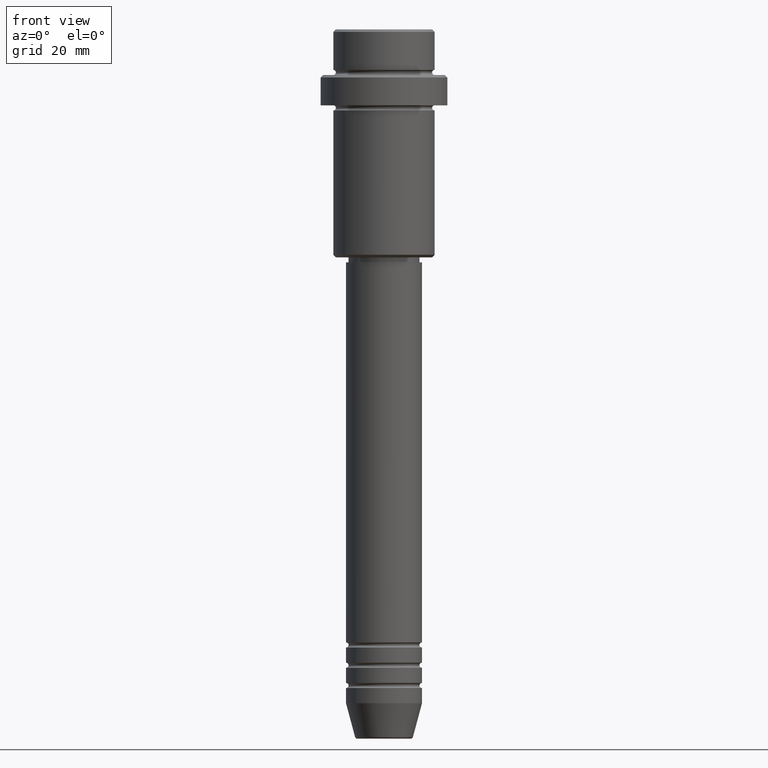
[diagram: clean part render]
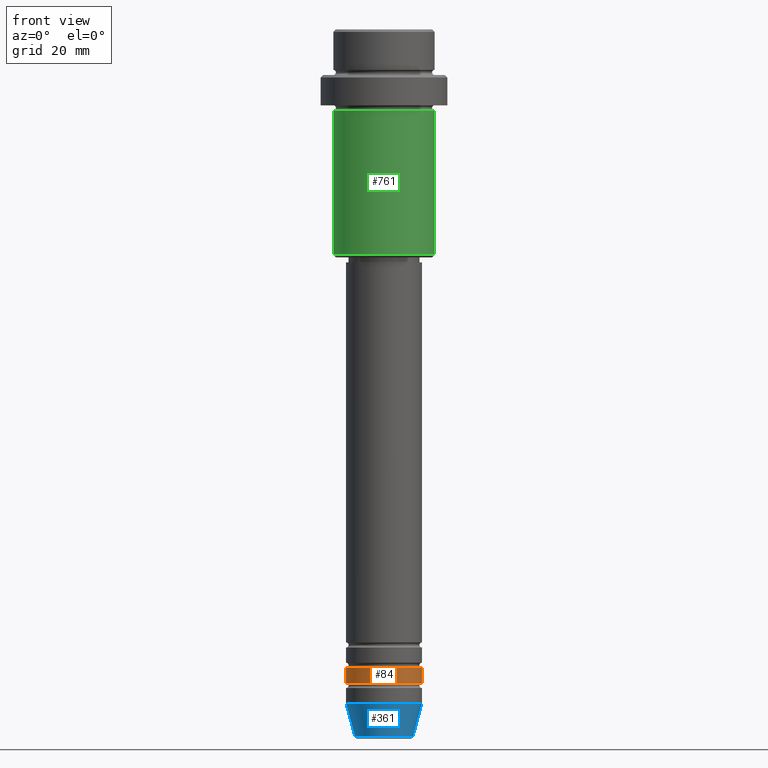
[diagram: same view with three faces highlighted in distinct colors, each labeled with its STEP entity id]
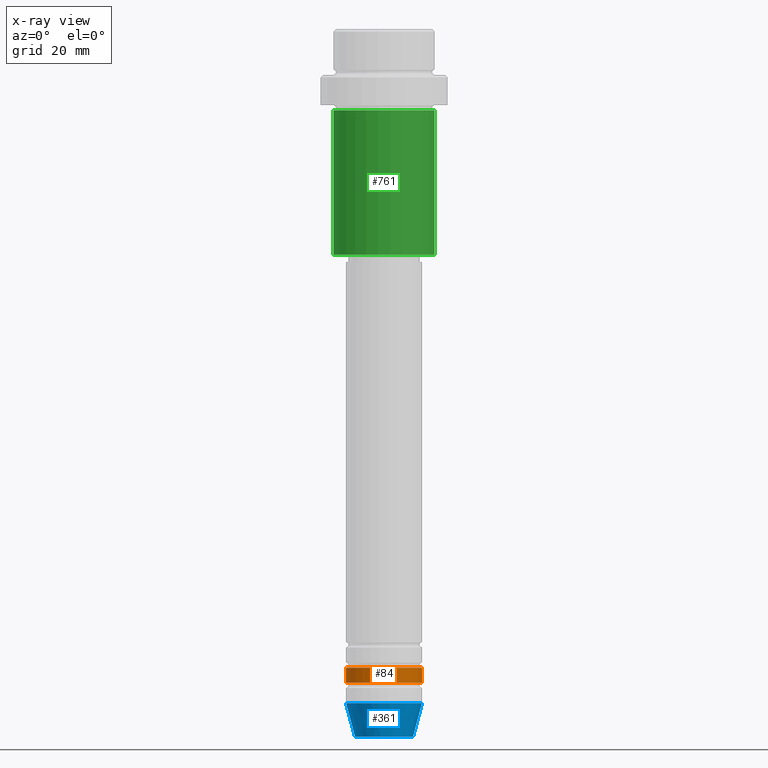
[diagram: x-ray of the same camera — body ghosted, the three highlighted faces saturated]
A machine part, front view with three faces highlighted in distinct colors.
The next image is the same camera in x-ray (body ghosted, the three faces saturated) — at least one of them is partly hidden behind the body in this view.
Their STEP definitions:

[orange] entity #84 — the highlighted cylindrical surface (partial cylindrical patch) has radius 7.5 mm, axis along (-0, -0, 1).
#3 = EDGE_LOOP ( 'NONE', ( #947, #812, #1102, #213 ) ) ;
#36 = DIRECTION ( 'NONE',  ( 1.000000000000000000, 0.000000000000000000, 0.000000000000000000 ) ) ;
#61 = AXIS2_PLACEMENT_3D ( 'NONE', #602, #1135, #36 ) ;
#84 = ADVANCED_FACE ( 'NONE', ( #263 ), #1361, .T. ) ;
#109 = VECTOR ( 'NONE', #1197, 1000.000000000000000 ) ;
#122 = VERTEX_POINT ( 'NONE', #941 ) ;
#202 = VERTEX_POINT ( 'NONE', #1049 ) ;
#213 = ORIENTED_EDGE ( 'NONE', *, *, #649, .F. ) ;
#220 = CARTESIAN_POINT ( 'NONE',  ( -7.500000000000000000, 9.184850993605147944E-16, -128.9999999999998863 ) ) ;
#256 = CARTESIAN_POINT ( 'NONE',  ( 7.500000000000000000, 0.000000000000000000, -125.9999999999998863 ) ) ;
#263 = FACE_OUTER_BOUND ( 'NONE', #3, .T. ) ;
#319 = LINE ( 'NONE', #760, #109 ) ;
#332 = CIRCLE ( 'NONE', #798, 7.500000000000000000 ) ;
#338 = VERTEX_POINT ( 'NONE', #256 ) ;
#533 = EDGE_CURVE ( 'NONE', #1149, #122, #577, .T. ) ;
#570 = AXIS2_PLACEMENT_3D ( 'NONE', #699, #1131, #1246 ) ;
#577 = LINE ( 'NONE', #1032, #1364 ) ;
#589 = DIRECTION ( 'NONE',  ( -0.000000000000000000, -0.000000000000000000, 1.000000000000000000 ) ) ;
#602 = CARTESIAN_POINT ( 'NONE',  ( 0.000000000000000000, 0.000000000000000000, 0.000000000000000000 ) ) ;
#626 = DIRECTION ( 'NONE',  ( -0.000000000000000000, -0.000000000000000000, 1.000000000000000000 ) ) ;
#649 = EDGE_CURVE ( 'NONE', #122, #338, #684, .T. ) ;
#684 = CIRCLE ( 'NONE', #570, 7.500000000000000000 ) ;
#699 = CARTESIAN_POINT ( 'NONE',  ( 0.000000000000000000, 0.000000000000000000, -125.9999999999998863 ) ) ;
#760 = CARTESIAN_POINT ( 'NONE',  ( 7.500000000000000000, 0.000000000000000000, 0.000000000000000000 ) ) ;
#777 = EDGE_CURVE ( 'NONE', #1149, #202, #332, .T. ) ;
#798 = AXIS2_PLACEMENT_3D ( 'NONE', #1271, #626, #1168 ) ;
#812 = ORIENTED_EDGE ( 'NONE', *, *, #777, .T. ) ;
#941 = CARTESIAN_POINT ( 'NONE',  ( -7.500000000000000000, 9.184850993605147944E-16, -125.9999999999998863 ) ) ;
#947 = ORIENTED_EDGE ( 'NONE', *, *, #533, .F. ) ;
#971 = EDGE_CURVE ( 'NONE', #202, #338, #319, .T. ) ;
#1032 = CARTESIAN_POINT ( 'NONE',  ( -7.500000000000000000, 9.184850993605147944E-16, 0.000000000000000000 ) ) ;
#1049 = CARTESIAN_POINT ( 'NONE',  ( 7.500000000000000000, 0.000000000000000000, -128.9999999999998863 ) ) ;
#1102 = ORIENTED_EDGE ( 'NONE', *, *, #971, .T. ) ;
#1131 = DIRECTION ( 'NONE',  ( -0.000000000000000000, -0.000000000000000000, 1.000000000000000000 ) ) ;
#1135 = DIRECTION ( 'NONE',  ( -0.000000000000000000, -0.000000000000000000, 1.000000000000000000 ) ) ;
#1149 = VERTEX_POINT ( 'NONE', #220 ) ;
#1168 = DIRECTION ( 'NONE',  ( 1.000000000000000000, 0.000000000000000000, 0.000000000000000000 ) ) ;
#1197 = DIRECTION ( 'NONE',  ( -0.000000000000000000, -0.000000000000000000, 1.000000000000000000 ) ) ;
#1246 = DIRECTION ( 'NONE',  ( 1.000000000000000000, 0.000000000000000000, 0.000000000000000000 ) ) ;
#1271 = CARTESIAN_POINT ( 'NONE',  ( 0.000000000000000000, 0.000000000000000000, -128.9999999999998863 ) ) ;
#1361 = CYLINDRICAL_SURFACE ( 'NONE', #61, 7.500000000000000000 ) ;
#1364 = VECTOR ( 'NONE', #589, 1000.000000000000000 ) ;

[blue] entity #361 — the highlighted conical surface has half-angle 15 deg.
#31 = CARTESIAN_POINT ( 'NONE',  ( -5.723655072137191269, 8.097153428560735915E-16, -139.6294095225512706 ) ) ;
#55 = CARTESIAN_POINT ( 'NONE',  ( -7.500000000000000000, 9.184850993605147944E-16, -133.0000000000000000 ) ) ;
#82 = LINE ( 'NONE', #1378, #176 ) ;
#86 = CARTESIAN_POINT ( 'NONE',  ( 5.723655072137191269, 0.000000000000000000, -139.6294095225512706 ) ) ;
#138 = VERTEX_POINT ( 'NONE', #31 ) ;
#176 = VECTOR ( 'NONE', #839, 1000.000000000000000 ) ;
#181 = VECTOR ( 'NONE', #347, 1000.000000000000000 ) ;
#196 = EDGE_CURVE ( 'NONE', #766, #321, #82, .T. ) ;
#285 = EDGE_LOOP ( 'NONE', ( #1089, #489, #1081, #320 ) ) ;
#320 = ORIENTED_EDGE ( 'NONE', *, *, #783, .F. ) ;
#321 = VERTEX_POINT ( 'NONE', #495 ) ;
#347 = DIRECTION ( 'NONE',  ( -0.2588190451025213501, 3.169619151431772337E-17, 0.9659258262890680902 ) ) ;
#361 = ADVANCED_FACE ( 'NONE', ( #1027 ), #1337, .T. ) ;
#383 = CIRCLE ( 'NONE', #1368, 7.500000000000000000 ) ;
#389 = CARTESIAN_POINT ( 'NONE',  ( 0.000000000000000000, 0.000000000000000000, -133.0000000000000000 ) ) ;
#395 = DIRECTION ( 'NONE',  ( -0.000000000000000000, -0.000000000000000000, 1.000000000000000000 ) ) ;
#489 = ORIENTED_EDGE ( 'NONE', *, *, #1300, .T. ) ;
#490 = DIRECTION ( 'NONE',  ( 1.000000000000000000, 0.000000000000000000, 0.000000000000000000 ) ) ;
#495 = CARTESIAN_POINT ( 'NONE',  ( 7.500000000000000000, 0.000000000000000000, -133.0000000000000000 ) ) ;
#609 = DIRECTION ( 'NONE',  ( 1.000000000000000000, 0.000000000000000000, 0.000000000000000000 ) ) ;
#633 = DIRECTION ( 'NONE',  ( -0.000000000000000000, -0.000000000000000000, 1.000000000000000000 ) ) ;
#705 = DIRECTION ( 'NONE',  ( -0.000000000000000000, -0.000000000000000000, 1.000000000000000000 ) ) ;
#742 = CARTESIAN_POINT ( 'NONE',  ( 0.000000000000000000, 0.000000000000000000, -133.0000000000000000 ) ) ;
#766 = VERTEX_POINT ( 'NONE', #86 ) ;
#783 = EDGE_CURVE ( 'NONE', #1334, #321, #383, .T. ) ;
#839 = DIRECTION ( 'NONE',  ( 0.2588190451025213501, 0.000000000000000000, 0.9659258262890680902 ) ) ;
#926 = CARTESIAN_POINT ( 'NONE',  ( 0.000000000000000000, 0.000000000000000000, -139.6294095225512706 ) ) ;
#1019 = LINE ( 'NONE', #1103, #181 ) ;
#1025 = CIRCLE ( 'NONE', #1235, 5.723655072137191269 ) ;
#1027 = FACE_OUTER_BOUND ( 'NONE', #285, .T. ) ;
#1036 = DIRECTION ( 'NONE',  ( 1.000000000000000000, 0.000000000000000000, 0.000000000000000000 ) ) ;
#1081 = ORIENTED_EDGE ( 'NONE', *, *, #196, .T. ) ;
#1089 = ORIENTED_EDGE ( 'NONE', *, *, #1095, .F. ) ;
#1095 = EDGE_CURVE ( 'NONE', #138, #1334, #1019, .T. ) ;
#1103 = CARTESIAN_POINT ( 'NONE',  ( -7.500000000000000000, 9.184850993605147944E-16, -133.0000000000000000 ) ) ;
#1235 = AXIS2_PLACEMENT_3D ( 'NONE', #926, #705, #1036 ) ;
#1300 = EDGE_CURVE ( 'NONE', #138, #766, #1025, .T. ) ;
#1313 = AXIS2_PLACEMENT_3D ( 'NONE', #389, #395, #490 ) ;
#1334 = VERTEX_POINT ( 'NONE', #55 ) ;
#1337 = CONICAL_SURFACE ( 'NONE', #1313, 7.500000000000000000, 0.2617993877991500740 ) ;
#1368 = AXIS2_PLACEMENT_3D ( 'NONE', #742, #633, #609 ) ;
#1378 = CARTESIAN_POINT ( 'NONE',  ( 7.500000000000000000, 0.000000000000000000, -133.0000000000000000 ) ) ;

[green] entity #761 — the highlighted cylindrical surface (partial cylindrical patch) has radius 10 mm, axis along (-0, -0, 1).
#21 = DIRECTION ( 'NONE',  ( -1.000000000000000000, 0.000000000000000000, 0.000000000000000000 ) ) ;
#27 = CARTESIAN_POINT ( 'NONE',  ( 9.999999999999998224, 0.000000000000000000, -16.00000000000000000 ) ) ;
#33 = DIRECTION ( 'NONE',  ( -0.000000000000000000, -0.000000000000000000, 1.000000000000000000 ) ) ;
#125 = CARTESIAN_POINT ( 'NONE',  ( -9.999999999999998224, 1.224646799147353059E-15, 0.000000000000000000 ) ) ;
#200 = VECTOR ( 'NONE', #1401, 1000.000000000000000 ) ;
#222 = VERTEX_POINT ( 'NONE', #1061 ) ;
#232 = ORIENTED_EDGE ( 'NONE', *, *, #424, .F. ) ;
#234 = ORIENTED_EDGE ( 'NONE', *, *, #672, .F. ) ;
#265 = AXIS2_PLACEMENT_3D ( 'NONE', #493, #829, #945 ) ;
#297 = FACE_OUTER_BOUND ( 'NONE', #1062, .T. ) ;
#424 = EDGE_CURVE ( 'NONE', #444, #990, #590, .T. ) ;
#441 = DIRECTION ( 'NONE',  ( -0.000000000000000000, -0.000000000000000000, 1.000000000000000000 ) ) ;
#444 = VERTEX_POINT ( 'NONE', #1184 ) ;
#449 = AXIS2_PLACEMENT_3D ( 'NONE', #904, #33, #21 ) ;
#460 = ORIENTED_EDGE ( 'NONE', *, *, #486, .T. ) ;
#486 = EDGE_CURVE ( 'NONE', #677, #990, #1170, .T. ) ;
#493 = CARTESIAN_POINT ( 'NONE',  ( 0.000000000000000000, 0.000000000000000000, 0.000000000000000000 ) ) ;
#502 = CYLINDRICAL_SURFACE ( 'NONE', #265, 9.999999999999998224 ) ;
#528 = CARTESIAN_POINT ( 'NONE',  ( 9.999999999999998224, 0.000000000000000000, 0.000000000000000000 ) ) ;
#544 = CIRCLE ( 'NONE', #449, 9.999999999999998224 ) ;
#566 = DIRECTION ( 'NONE',  ( -0.000000000000000000, -0.000000000000000000, 1.000000000000000000 ) ) ;
#574 = ORIENTED_EDGE ( 'NONE', *, *, #595, .T. ) ;
#590 = CIRCLE ( 'NONE', #1043, 9.999999999999998224 ) ;
#595 = EDGE_CURVE ( 'NONE', #222, #677, #544, .T. ) ;
#672 = EDGE_CURVE ( 'NONE', #222, #444, #1007, .T. ) ;
#677 = VERTEX_POINT ( 'NONE', #682 ) ;
#682 = CARTESIAN_POINT ( 'NONE',  ( 9.999999999999998224, 0.000000000000000000, -44.49999999999998579 ) ) ;
#749 = DIRECTION ( 'NONE',  ( 1.000000000000000000, 0.000000000000000000, 0.000000000000000000 ) ) ;
#761 = ADVANCED_FACE ( 'NONE', ( #297 ), #502, .T. ) ;
#829 = DIRECTION ( 'NONE',  ( -0.000000000000000000, -0.000000000000000000, 1.000000000000000000 ) ) ;
#904 = CARTESIAN_POINT ( 'NONE',  ( 0.000000000000000000, 0.000000000000000000, -44.49999999999998579 ) ) ;
#945 = DIRECTION ( 'NONE',  ( 1.000000000000000000, 0.000000000000000000, 0.000000000000000000 ) ) ;
#960 = VECTOR ( 'NONE', #566, 1000.000000000000000 ) ;
#990 = VERTEX_POINT ( 'NONE', #27 ) ;
#1007 = LINE ( 'NONE', #125, #960 ) ;
#1043 = AXIS2_PLACEMENT_3D ( 'NONE', #1060, #441, #749 ) ;
#1060 = CARTESIAN_POINT ( 'NONE',  ( 0.000000000000000000, 0.000000000000000000, -16.00000000000000000 ) ) ;
#1061 = CARTESIAN_POINT ( 'NONE',  ( -9.999999999999998224, 1.224646799147353059E-15, -44.49999999999998579 ) ) ;
#1062 = EDGE_LOOP ( 'NONE', ( #234, #574, #460, #232 ) ) ;
#1170 = LINE ( 'NONE', #528, #200 ) ;
#1184 = CARTESIAN_POINT ( 'NONE',  ( -9.999999999999998224, 1.224646799147353059E-15, -16.00000000000000000 ) ) ;
#1401 = DIRECTION ( 'NONE',  ( -0.000000000000000000, -0.000000000000000000, 1.000000000000000000 ) ) ;